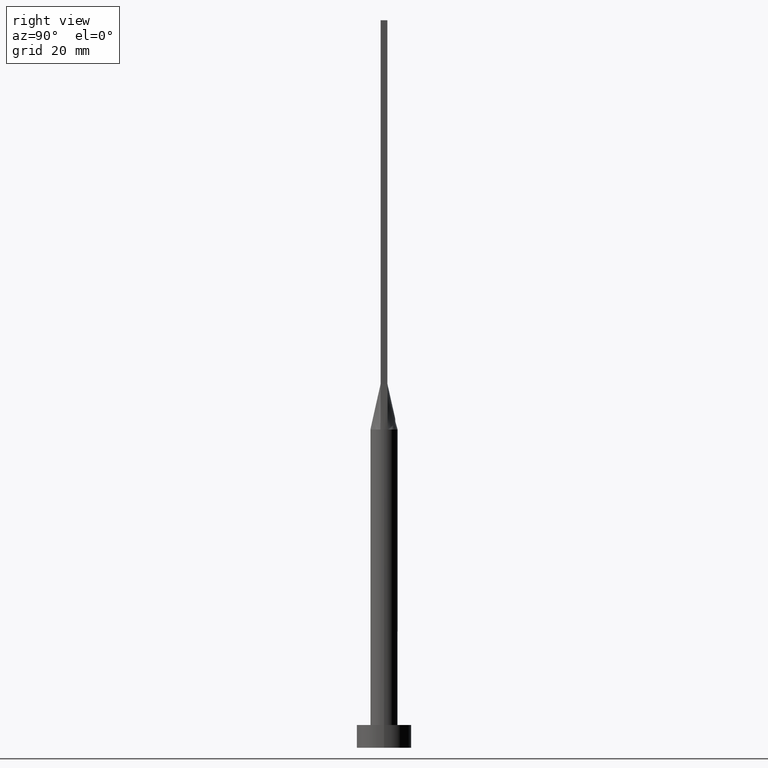
[diagram: clean part render]
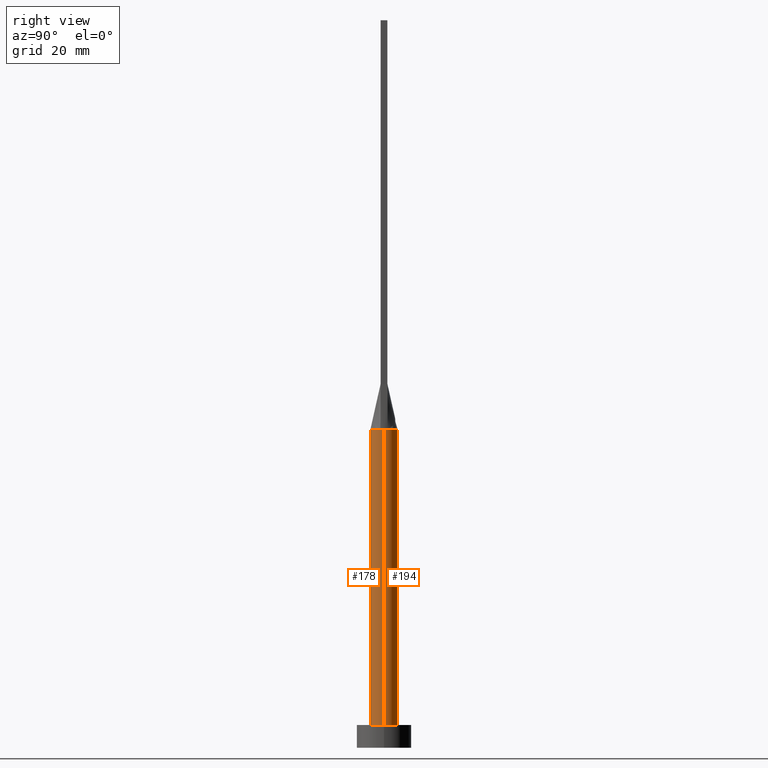
[diagram: same view with one multi-face feature highlighted, each face labeled with its STEP entity id]
A machine part, right view. The highlighted faces form ONE feature: a constant-radius fillet chain: 2 tangent blend faces with common blend radius 3 mm. The faces share edges in the B-rep.
Their STEP definitions:
[1] entity #178 (Cylinder):
#5 = ORIENTED_EDGE ( 'NONE', *, *, #493, .F. ) ;
#11 = AXIS2_PLACEMENT_3D ( 'NONE', #574, #207, #158 ) ;
#48 = CARTESIAN_POINT ( 'NONE',  ( -2.894489875237701959, -0.7894071376467488577, 70.00000000000000000 ) ) ;
#50 = DIRECTION ( 'NONE',  ( -0.000000000000000000, -0.000000000000000000, -1.000000000000000000 ) ) ;
#57 = ORIENTED_EDGE ( 'NONE', *, *, #349, .F. ) ;
#58 = CIRCLE ( 'NONE', #347, 3.000000000000000444 ) ;
#71 = CARTESIAN_POINT ( 'NONE',  ( 2.894514141151844910, -0.7894138151126538494, 70.00000000000000000 ) ) ;
#82 = CIRCLE ( 'NONE', #145, 3.000000000000000444 ) ;
#88 = CARTESIAN_POINT ( 'NONE',  ( 3.000000000000000444, 3.673940397442060361E-16, 70.00000000000000000 ) ) ;
#91 = ORIENTED_EDGE ( 'NONE', *, *, #99, .T. ) ;
#93 = FACE_OUTER_BOUND ( 'NONE', #386, .T. ) ;
#99 = EDGE_CURVE ( 'NONE', #252, #249, #82, .T. ) ;
#101 = CIRCLE ( 'NONE', #11, 3.000000000000000444 ) ;
#114 = VERTEX_POINT ( 'NONE', #195 ) ;
#136 = DIRECTION ( 'NONE',  ( -0.000000000000000000, -0.000000000000000000, -1.000000000000000000 ) ) ;
#142 = ORIENTED_EDGE ( 'NONE', *, *, #216, .F. ) ;
#145 = AXIS2_PLACEMENT_3D ( 'NONE', #209, #438, #261 ) ;
#158 = DIRECTION ( 'NONE',  ( 1.000000000000000000, -5.329070518200751394E-15, 0.000000000000000000 ) ) ;
#178 = ADVANCED_FACE ( 'NONE', ( #93 ), #365, .T. ) ;
#193 = ORIENTED_EDGE ( 'NONE', *, *, #328, .T. ) ;
#195 = CARTESIAN_POINT ( 'NONE',  ( -3.000000000000000000, -1.912111867153115409E-16, 70.00000000000000000 ) ) ;
#202 = CARTESIAN_POINT ( 'NONE',  ( 0.000000000000000000, 0.000000000000000000, 70.00000000000000000 ) ) ;
#207 = DIRECTION ( 'NONE',  ( 0.000000000000000000, 0.000000000000000000, 1.000000000000000000 ) ) ;
#209 = CARTESIAN_POINT ( 'NONE',  ( 0.000000000000000000, 0.000000000000000000, 5.000000000000000000 ) ) ;
#216 = EDGE_CURVE ( 'NONE', #313, #249, #450, .T. ) ;
#236 = DIRECTION ( 'NONE',  ( 1.000000000000000000, 0.000000000000000000, 0.000000000000000000 ) ) ;
#249 = VERTEX_POINT ( 'NONE', #362 ) ;
#252 = VERTEX_POINT ( 'NONE', #547 ) ;
#258 = CARTESIAN_POINT ( 'NONE',  ( -3.000000000000000444, 0.000000000000000000, 70.00000000000000000 ) ) ;
#261 = DIRECTION ( 'NONE',  ( 1.000000000000000000, 0.000000000000000000, 0.000000000000000000 ) ) ;
#279 = VECTOR ( 'NONE', #50, 1000.000000000000000 ) ;
#283 = DIRECTION ( 'NONE',  ( 0.000000000000000000, 0.000000000000000000, 1.000000000000000000 ) ) ;
#285 = EDGE_CURVE ( 'NONE', #114, #345, #516, .T. ) ;
#312 = LINE ( 'NONE', #258, #279 ) ;
#313 = VERTEX_POINT ( 'NONE', #533 ) ;
#328 = EDGE_CURVE ( 'NONE', #114, #252, #312, .T. ) ;
#339 = VECTOR ( 'NONE', #462, 1000.000000000000000 ) ;
#345 = VERTEX_POINT ( 'NONE', #48 ) ;
#347 = AXIS2_PLACEMENT_3D ( 'NONE', #449, #469, #236 ) ;
#349 = EDGE_CURVE ( 'NONE', #345, #463, #58, .T. ) ;
#362 = CARTESIAN_POINT ( 'NONE',  ( 3.000000000000000444, 3.673940397442060361E-16, 5.000000000000000000 ) ) ;
#365 = CYLINDRICAL_SURFACE ( 'NONE', #541, 3.000000000000000444 ) ;
#386 = EDGE_LOOP ( 'NONE', ( #142, #5, #57, #436, #193, #91 ) ) ;
#436 = ORIENTED_EDGE ( 'NONE', *, *, #285, .F. ) ;
#438 = DIRECTION ( 'NONE',  ( 0.000000000000000000, 0.000000000000000000, 1.000000000000000000 ) ) ;
#449 = CARTESIAN_POINT ( 'NONE',  ( 0.000000000000000000, 0.000000000000000000, 70.00000000000000000 ) ) ;
#450 = LINE ( 'NONE', #88, #339 ) ;
#453 = CARTESIAN_POINT ( 'NONE',  ( 0.000000000000000000, 0.000000000000000000, 70.00000000000000000 ) ) ;
#462 = DIRECTION ( 'NONE',  ( -0.000000000000000000, -0.000000000000000000, -1.000000000000000000 ) ) ;
#463 = VERTEX_POINT ( 'NONE', #71 ) ;
#469 = DIRECTION ( 'NONE',  ( 0.000000000000000000, 0.000000000000000000, 1.000000000000000000 ) ) ;
#493 = EDGE_CURVE ( 'NONE', #463, #313, #101, .T. ) ;
#516 = CIRCLE ( 'NONE', #555, 3.000000000000000444 ) ;
#533 = CARTESIAN_POINT ( 'NONE',  ( 3.000000000000000888, 4.817174831141495148E-17, 70.00000000000000000 ) ) ;
#541 = AXIS2_PLACEMENT_3D ( 'NONE', #453, #136, #554 ) ;
#547 = CARTESIAN_POINT ( 'NONE',  ( -3.000000000000000444, 0.000000000000000000, 5.000000000000000000 ) ) ;
#554 = DIRECTION ( 'NONE',  ( -1.000000000000000000, 0.000000000000000000, 0.000000000000000000 ) ) ;
#555 = AXIS2_PLACEMENT_3D ( 'NONE', #202, #283, #571 ) ;
#571 = DIRECTION ( 'NONE',  ( 1.000000000000000000, 0.000000000000000000, 0.000000000000000000 ) ) ;
#574 = CARTESIAN_POINT ( 'NONE',  ( 0.000000000000000000, 0.000000000000000000, 70.00000000000000000 ) ) ;
[2] entity #194 (Cylinder):
#1 = AXIS2_PLACEMENT_3D ( 'NONE', #257, #96, #499 ) ;
#3 = ORIENTED_EDGE ( 'NONE', *, *, #216, .T. ) ;
#9 = EDGE_CURVE ( 'NONE', #138, #114, #504, .T. ) ;
#17 = ORIENTED_EDGE ( 'NONE', *, *, #9, .F. ) ;
#20 = CARTESIAN_POINT ( 'NONE',  ( -2.894506632021299541, 0.7894116946786272626, 70.00000000000000000 ) ) ;
#44 = CARTESIAN_POINT ( 'NONE',  ( -2.248179627679385728, 2.014142483996540278, 70.00000000000001421 ) ) ;
#50 = DIRECTION ( 'NONE',  ( -0.000000000000000000, -0.000000000000000000, -1.000000000000000000 ) ) ;
#53 = AXIS2_PLACEMENT_3D ( 'NONE', #356, #292, #539 ) ;
#55 = CARTESIAN_POINT ( 'NONE',  ( 2.894482401701604424, 0.7894050286368272662, 70.00000000000000000 ) ) ;
#83 = EDGE_LOOP ( 'NONE', ( #442, #3, #241, #412, #17, #182 ) ) ;
#88 = CARTESIAN_POINT ( 'NONE',  ( 3.000000000000000444, 3.673940397442060361E-16, 70.00000000000000000 ) ) ;
#96 = DIRECTION ( 'NONE',  ( -0.000000000000000000, -0.000000000000000000, -1.000000000000000000 ) ) ;
#114 = VERTEX_POINT ( 'NONE', #195 ) ;
#122 = CARTESIAN_POINT ( 'NONE',  ( 2.248179627679386172, 2.014142483996539834, 70.00000000000000000 ) ) ;
#138 = VERTEX_POINT ( 'NONE', #311 ) ;
#141 = CARTESIAN_POINT ( 'NONE',  ( 0.000000000000000000, 0.000000000000000000, 70.00000000000000000 ) ) ;
#143 = CARTESIAN_POINT ( 'NONE',  ( -0.7628506052746797383, 2.924692134573155133, 70.00000000000001421 ) ) ;
#182 = ORIENTED_EDGE ( 'NONE', *, *, #391, .F. ) ;
#194 = ADVANCED_FACE ( 'NONE', ( #317 ), #507, .T. ) ;
#195 = CARTESIAN_POINT ( 'NONE',  ( -3.000000000000000000, -1.912111867153115409E-16, 70.00000000000000000 ) ) ;
#204 = EDGE_CURVE ( 'NONE', #313, #222, #382, .T. ) ;
#216 = EDGE_CURVE ( 'NONE', #313, #249, #450, .T. ) ;
#222 = VERTEX_POINT ( 'NONE', #55 ) ;
#241 = ORIENTED_EDGE ( 'NONE', *, *, #334, .T. ) ;
#245 = CARTESIAN_POINT ( 'NONE',  ( 2.830829925251657997, 1.022044525068634302, 70.00000000000001421 ) ) ;
#249 = VERTEX_POINT ( 'NONE', #362 ) ;
#252 = VERTEX_POINT ( 'NONE', #547 ) ;
#253 = DIRECTION ( 'NONE',  ( 1.000000000000000000, 0.000000000000000000, 0.000000000000000000 ) ) ;
#255 = CARTESIAN_POINT ( 'NONE',  ( -2.733316749964668002, 1.269511353635830453, 70.00000000000001421 ) ) ;
#257 = CARTESIAN_POINT ( 'NONE',  ( 0.000000000000000000, 0.000000000000000000, 70.00000000000000000 ) ) ;
#258 = CARTESIAN_POINT ( 'NONE',  ( -3.000000000000000444, 0.000000000000000000, 70.00000000000000000 ) ) ;
#265 = DIRECTION ( 'NONE',  ( 1.000000000000000000, 0.000000000000000000, 0.000000000000000000 ) ) ;
#272 = CARTESIAN_POINT ( 'NONE',  ( 0.3818979204996085230, 3.000000000000001332, 70.00000000000000000 ) ) ;
#279 = VECTOR ( 'NONE', #50, 1000.000000000000000 ) ;
#292 = DIRECTION ( 'NONE',  ( 0.000000000000000000, 0.000000000000000000, 1.000000000000000000 ) ) ;
#306 = CARTESIAN_POINT ( 'NONE',  ( -2.442412046818596139, 1.765588549521969641, 70.00000000000001421 ) ) ;
#311 = CARTESIAN_POINT ( 'NONE',  ( -2.894506632021299541, 0.7894116946786272626, 70.00000000000000000 ) ) ;
#312 = LINE ( 'NONE', #258, #279 ) ;
#313 = VERTEX_POINT ( 'NONE', #533 ) ;
#317 = FACE_OUTER_BOUND ( 'NONE', #83, .T. ) ;
#319 = CARTESIAN_POINT ( 'NONE',  ( -0.3818979204996078569, 3.000000000000000888, 70.00000000000001421 ) ) ;
#328 = EDGE_CURVE ( 'NONE', #114, #252, #312, .T. ) ;
#334 = EDGE_CURVE ( 'NONE', #249, #252, #553, .T. ) ;
#337 = AXIS2_PLACEMENT_3D ( 'NONE', #141, #466, #265 ) ;
#339 = VECTOR ( 'NONE', #462, 1000.000000000000000 ) ;
#348 = CARTESIAN_POINT ( 'NONE',  ( 2.733316749964668446, 1.269511353635831341, 70.00000000000000000 ) ) ;
#354 = DIRECTION ( 'NONE',  ( 0.000000000000000000, 0.000000000000000000, 1.000000000000000000 ) ) ;
#356 = CARTESIAN_POINT ( 'NONE',  ( 0.000000000000000000, 0.000000000000000000, 5.000000000000000000 ) ) ;
#360 = CARTESIAN_POINT ( 'NONE',  ( -2.830829925251659329, 1.022044525068634302, 70.00000000000001421 ) ) ;
#362 = CARTESIAN_POINT ( 'NONE',  ( 3.000000000000000444, 3.673940397442060361E-16, 5.000000000000000000 ) ) ;
#382 = CIRCLE ( 'NONE', #337, 3.000000000000000444 ) ;
#391 = EDGE_CURVE ( 'NONE', #222, #138, #500, .T. ) ;
#392 = CARTESIAN_POINT ( 'NONE',  ( 2.442412046818595250, 1.765588549521970529, 70.00000000000000000 ) ) ;
#404 = CARTESIAN_POINT ( 'NONE',  ( 0.000000000000000000, 0.000000000000000000, 70.00000000000000000 ) ) ;
#412 = ORIENTED_EDGE ( 'NONE', *, *, #328, .F. ) ;
#414 = CARTESIAN_POINT ( 'NONE',  ( 1.447928580458859305, 2.653161878569118670, 70.00000000000000000 ) ) ;
#442 = ORIENTED_EDGE ( 'NONE', *, *, #204, .F. ) ;
#450 = LINE ( 'NONE', #88, #339 ) ;
#462 = DIRECTION ( 'NONE',  ( -0.000000000000000000, -0.000000000000000000, -1.000000000000000000 ) ) ;
#465 = CARTESIAN_POINT ( 'NONE',  ( -1.751288851749021491, 2.458468820606022565, 70.00000000000001421 ) ) ;
#466 = DIRECTION ( 'NONE',  ( 0.000000000000000000, 0.000000000000000000, 1.000000000000000000 ) ) ;
#467 = AXIS2_PLACEMENT_3D ( 'NONE', #404, #354, #253 ) ;
#476 = CARTESIAN_POINT ( 'NONE',  ( 2.894482401701604424, 0.7894050286368272662, 70.00000000000000000 ) ) ;
#499 = DIRECTION ( 'NONE',  ( -1.000000000000000000, 0.000000000000000000, 0.000000000000000000 ) ) ;
#500 = B_SPLINE_CURVE_WITH_KNOTS ( 'NONE', 3,
 ( #476, #245, #348, #392, #122, #511, #414, #560, #272, #319, #143, #508, #465, #44, #306, #255, #360, #20 ),
 .UNSPECIFIED., .F., .F.,
 ( 4, 2, 2, 2, 2, 2, 2, 2, 4 ),
 ( 0.000000000000000000, 0.1250000000000000000, 0.2500000000000000000, 0.3750000000000000000, 0.5000000000000000000, 0.6250000000000000000, 0.7500000000000000000, 0.8750000000000000000, 1.000000000000000000 ),
 .UNSPECIFIED. ) ;
#504 = CIRCLE ( 'NONE', #467, 3.000000000000000444 ) ;
#507 = CYLINDRICAL_SURFACE ( 'NONE', #1, 3.000000000000000444 ) ;
#508 = CARTESIAN_POINT ( 'NONE',  ( -1.447928580458858416, 2.653161878569119558, 70.00000000000001421 ) ) ;
#511 = CARTESIAN_POINT ( 'NONE',  ( 1.751288851749022379, 2.458468820606022565, 70.00000000000001421 ) ) ;
#533 = CARTESIAN_POINT ( 'NONE',  ( 3.000000000000000888, 4.817174831141495148E-17, 70.00000000000000000 ) ) ;
#539 = DIRECTION ( 'NONE',  ( 1.000000000000000000, 0.000000000000000000, 0.000000000000000000 ) ) ;
#547 = CARTESIAN_POINT ( 'NONE',  ( -3.000000000000000444, 0.000000000000000000, 5.000000000000000000 ) ) ;
#553 = CIRCLE ( 'NONE', #53, 3.000000000000000444 ) ;
#560 = CARTESIAN_POINT ( 'NONE',  ( 0.7628506052746800714, 2.924692134573154689, 70.00000000000001421 ) ) ;